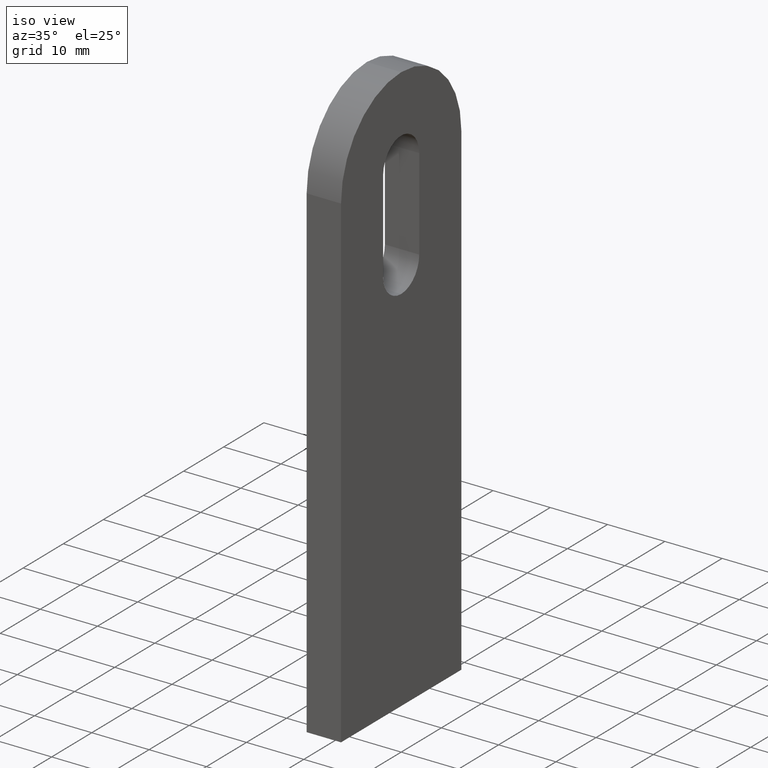
[diagram: clean part render]
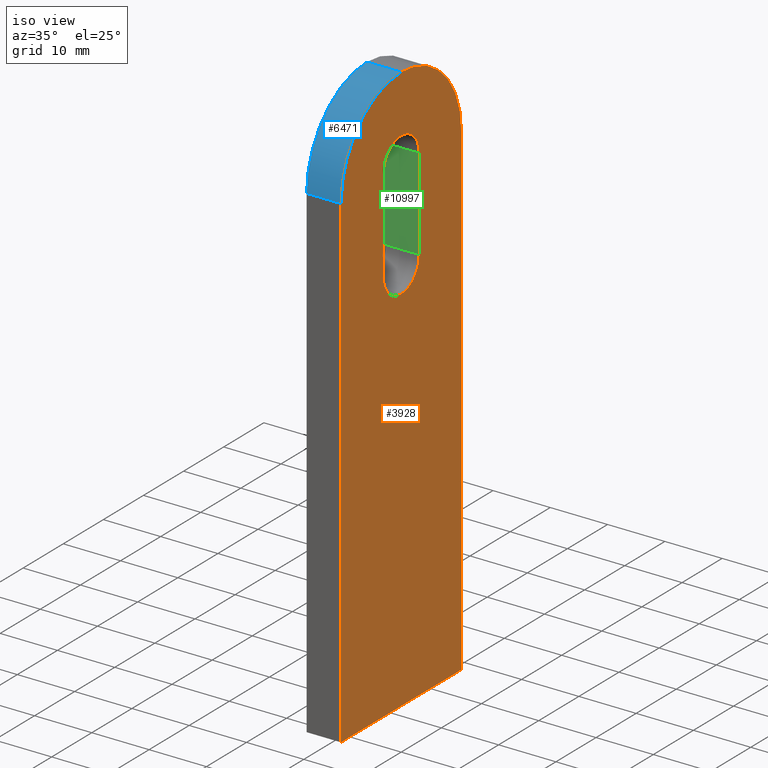
[diagram: same view with three faces highlighted in distinct colors, each labeled with its STEP entity id]
A machine part, iso view with three faces highlighted in distinct colors.
Their STEP definitions:

[orange] entity #3928 — the highlighted planar face has unit normal (-1, -0, 0).
#116 = VECTOR ( 'NONE', #5623, 1000.000000000000000 ) ;
#332 = VERTEX_POINT ( 'NONE', #9308 ) ;
#502 = LINE ( 'NONE', #7531, #4234 ) ;
#598 = AXIS2_PLACEMENT_3D ( 'NONE', #4738, #4783, #873 ) ;
#697 = CARTESIAN_POINT ( 'NONE',  ( 3.000000000000000000, -4.500000000000000900, 85.49999999999998600 ) ) ;
#776 = EDGE_CURVE ( 'NONE', #332, #5446, #502, .T. ) ;
#824 = DIRECTION ( 'NONE',  ( -1.000000000000000000, -0.0000000000000000000, 0.0000000000000000000 ) ) ;
#873 = DIRECTION ( 'NONE',  ( 0.0000000000000000000, 0.0000000000000000000, 1.000000000000000000 ) ) ;
#932 = ORIENTED_EDGE ( 'NONE', *, *, #9078, .F. ) ;
#1104 = CARTESIAN_POINT ( 'NONE',  ( 3.000000000000000000, 15.00000000000000000, -3.061616997868383000E-015 ) ) ;
#1549 = FACE_OUTER_BOUND ( 'NONE', #9142, .T. ) ;
#1678 = CIRCLE ( 'NONE', #8870, 4.500000000000003600 ) ;
#1896 = EDGE_CURVE ( 'NONE', #5444, #4095, #10503, .T. ) ;
#1994 = DIRECTION ( 'NONE',  ( 0.0000000000000000000, 0.0000000000000000000, -1.000000000000000000 ) ) ;
#2065 = ORIENTED_EDGE ( 'NONE', *, *, #4713, .F. ) ;
#2229 = VERTEX_POINT ( 'NONE', #11192 ) ;
#2475 = ORIENTED_EDGE ( 'NONE', *, *, #2848, .F. ) ;
#2553 = DIRECTION ( 'NONE',  ( 0.0000000000000000000, 0.0000000000000000000, -1.000000000000000000 ) ) ;
#2564 = CIRCLE ( 'NONE', #11419, 4.500000000000003600 ) ;
#2671 = CARTESIAN_POINT ( 'NONE',  ( 3.000000000000000000, 4.500000000000000900, 85.49999999999998600 ) ) ;
#2735 = CIRCLE ( 'NONE', #5178, 15.00000000000000000 ) ;
#2755 = ORIENTED_EDGE ( 'NONE', *, *, #1896, .F. ) ;
#2815 = ORIENTED_EDGE ( 'NONE', *, *, #5278, .F. ) ;
#2848 = EDGE_CURVE ( 'NONE', #11845, #3695, #3883, .T. ) ;
#3024 = DIRECTION ( 'NONE',  ( 1.000000000000000000, 0.0000000000000000000, 0.0000000000000000000 ) ) ;
#3272 = CARTESIAN_POINT ( 'NONE',  ( 3.000000000000000000, -4.500000000000000900, 85.49999999999998600 ) ) ;
#3397 = ORIENTED_EDGE ( 'NONE', *, *, #9939, .F. ) ;
#3546 = FACE_BOUND ( 'NONE', #4427, .T. ) ;
#3695 = VERTEX_POINT ( 'NONE', #10244 ) ;
#3702 = DIRECTION ( 'NONE',  ( 0.0000000000000000000, 0.0000000000000000000, 1.000000000000000000 ) ) ;
#3808 = VERTEX_POINT ( 'NONE', #6683 ) ;
#3883 = LINE ( 'NONE', #3272, #7280 ) ;
#3928 = ADVANCED_FACE ( 'NONE', ( #3546, #1549 ), #6806, .F. ) ;
#4095 = VERTEX_POINT ( 'NONE', #1104 ) ;
#4234 = VECTOR ( 'NONE', #8526, 1000.000000000000000 ) ;
#4427 = EDGE_LOOP ( 'NONE', ( #2475, #10316, #7263, #12418, #2065 ) ) ;
#4713 = EDGE_CURVE ( 'NONE', #3695, #2229, #1678, .T. ) ;
#4722 = CARTESIAN_POINT ( 'NONE',  ( 3.000000000000000000, 15.00000000000000200, 84.99999999999998600 ) ) ;
#4738 = CARTESIAN_POINT ( 'NONE',  ( 3.000000000000000000, 0.0000000000000000000, 84.99999999999998600 ) ) ;
#4749 = VERTEX_POINT ( 'NONE', #5975 ) ;
#4783 = DIRECTION ( 'NONE',  ( -1.000000000000000000, -0.0000000000000000000, 0.0000000000000000000 ) ) ;
#4818 = DIRECTION ( 'NONE',  ( 0.0000000000000000000, 0.0000000000000000000, 1.000000000000000000 ) ) ;
#4899 = LINE ( 'NONE', #9637, #11628 ) ;
#5178 = AXIS2_PLACEMENT_3D ( 'NONE', #9588, #6723, #3702 ) ;
#5267 = DIRECTION ( 'NONE',  ( 0.0000000000000000000, -2.040851148208008500E-017, -1.000000000000000000 ) ) ;
#5278 = EDGE_CURVE ( 'NONE', #3808, #4749, #2735, .T. ) ;
#5327 = CARTESIAN_POINT ( 'NONE',  ( 3.000000000000000000, -15.00000000000000000, -3.061616997868383000E-015 ) ) ;
#5444 = VERTEX_POINT ( 'NONE', #4722 ) ;
#5446 = VERTEX_POINT ( 'NONE', #2671 ) ;
#5623 = DIRECTION ( 'NONE',  ( 0.0000000000000000000, -2.040851148208008500E-017, 1.000000000000000000 ) ) ;
#5971 = CARTESIAN_POINT ( 'NONE',  ( 3.000000000000000000, 7.966394000823676000E-016, 69.50000000000000000 ) ) ;
#5975 = CARTESIAN_POINT ( 'NONE',  ( 3.000000000000000000, 0.0000000000000000000, 99.99999999999998600 ) ) ;
#5997 = LINE ( 'NONE', #5327, #116 ) ;
#6383 = DIRECTION ( 'NONE',  ( 1.000000000000000000, 0.0000000000000000000, 0.0000000000000000000 ) ) ;
#6683 = CARTESIAN_POINT ( 'NONE',  ( 3.000000000000000000, -15.00000000000000200, 84.99999999999998600 ) ) ;
#6723 = DIRECTION ( 'NONE',  ( -1.000000000000000000, -0.0000000000000000000, 0.0000000000000000000 ) ) ;
#6806 = PLANE ( 'NONE',  #598 ) ;
#6882 = CARTESIAN_POINT ( 'NONE',  ( 3.000000000000000000, 0.0000000000000000000, 84.99999999999998600 ) ) ;
#6913 = CARTESIAN_POINT ( 'NONE',  ( 3.000000000000000000, -15.00000000000000000, -3.061616997868383000E-015 ) ) ;
#6956 = DIRECTION ( 'NONE',  ( 0.0000000000000000000, -1.000000000000000000, 0.0000000000000000000 ) ) ;
#7169 = EDGE_CURVE ( 'NONE', #4095, #7181, #4899, .T. ) ;
#7181 = VERTEX_POINT ( 'NONE', #6913 ) ;
#7263 = ORIENTED_EDGE ( 'NONE', *, *, #776, .F. ) ;
#7280 = VECTOR ( 'NONE', #10157, 1000.000000000000000 ) ;
#7531 = CARTESIAN_POINT ( 'NONE',  ( 3.000000000000000000, 4.500000000000000900, 85.49999999999998600 ) ) ;
#7582 = EDGE_CURVE ( 'NONE', #2229, #332, #2564, .T. ) ;
#7986 = DIRECTION ( 'NONE',  ( 1.000000000000000000, 0.0000000000000000000, 0.0000000000000000000 ) ) ;
#8325 = AXIS2_PLACEMENT_3D ( 'NONE', #12243, #6383, #2553 ) ;
#8526 = DIRECTION ( 'NONE',  ( -0.0000000000000000000, -1.626303258728257900E-016, 1.000000000000000000 ) ) ;
#8660 = VECTOR ( 'NONE', #5267, 1000.000000000000000 ) ;
#8870 = AXIS2_PLACEMENT_3D ( 'NONE', #9780, #3024, #9920 ) ;
#9033 = CARTESIAN_POINT ( 'NONE',  ( 3.000000000000000000, 15.00000000000000200, 84.99999999999998600 ) ) ;
#9078 = EDGE_CURVE ( 'NONE', #4749, #5444, #11829, .T. ) ;
#9142 = EDGE_LOOP ( 'NONE', ( #2815, #3397, #12405, #2755, #932 ) ) ;
#9308 = CARTESIAN_POINT ( 'NONE',  ( 3.000000000000000000, 4.500000000000003600, 69.50000000000000000 ) ) ;
#9481 = EDGE_CURVE ( 'NONE', #5446, #11845, #10908, .T. ) ;
#9588 = CARTESIAN_POINT ( 'NONE',  ( 3.000000000000000000, 0.0000000000000000000, 84.99999999999998600 ) ) ;
#9637 = CARTESIAN_POINT ( 'NONE',  ( 3.000000000000000000, 15.00000000000000000, -3.061616997868383000E-015 ) ) ;
#9780 = CARTESIAN_POINT ( 'NONE',  ( 3.000000000000000000, 7.966394000823676000E-016, 69.50000000000000000 ) ) ;
#9920 = DIRECTION ( 'NONE',  ( 0.0000000000000000000, 0.0000000000000000000, -1.000000000000000000 ) ) ;
#9939 = EDGE_CURVE ( 'NONE', #7181, #3808, #5997, .T. ) ;
#10157 = DIRECTION ( 'NONE',  ( 0.0000000000000000000, 1.626303258728257900E-016, -1.000000000000000000 ) ) ;
#10244 = CARTESIAN_POINT ( 'NONE',  ( 3.000000000000000000, -4.500000000000000000, 69.50000000000000000 ) ) ;
#10281 = AXIS2_PLACEMENT_3D ( 'NONE', #6882, #824, #4818 ) ;
#10316 = ORIENTED_EDGE ( 'NONE', *, *, #9481, .F. ) ;
#10503 = LINE ( 'NONE', #9033, #8660 ) ;
#10908 = CIRCLE ( 'NONE', #8325, 4.500000000000003600 ) ;
#11192 = CARTESIAN_POINT ( 'NONE',  ( 3.000000000000000000, 7.966394000823676000E-016, 65.00000000000000000 ) ) ;
#11419 = AXIS2_PLACEMENT_3D ( 'NONE', #5971, #7986, #1994 ) ;
#11628 = VECTOR ( 'NONE', #6956, 1000.000000000000000 ) ;
#11829 = CIRCLE ( 'NONE', #10281, 15.00000000000000000 ) ;
#11845 = VERTEX_POINT ( 'NONE', #697 ) ;
#12243 = CARTESIAN_POINT ( 'NONE',  ( 3.000000000000000000, -1.776356839400250900E-015, 85.49999999999998600 ) ) ;
#12405 = ORIENTED_EDGE ( 'NONE', *, *, #7169, .F. ) ;
#12418 = ORIENTED_EDGE ( 'NONE', *, *, #7582, .F. ) ;

[blue] entity #6471 — the highlighted cylindrical surface (partial cylindrical patch) has radius 15 mm, axis along (-1, -0, -0).
#236 = EDGE_LOOP ( 'NONE', ( #4182, #2956, #10595, #11248 ) ) ;
#318 = VECTOR ( 'NONE', #1847, 1000.000000000000000 ) ;
#815 = VERTEX_POINT ( 'NONE', #9025 ) ;
#1038 = DIRECTION ( 'NONE',  ( 0.0000000000000000000, 0.0000000000000000000, 1.000000000000000000 ) ) ;
#1847 = DIRECTION ( 'NONE',  ( -1.000000000000000000, -0.0000000000000000000, -0.0000000000000000000 ) ) ;
#1938 = CARTESIAN_POINT ( 'NONE',  ( -3.000000000000000000, 0.0000000000000000000, 84.99999999999998600 ) ) ;
#2735 = CIRCLE ( 'NONE', #5178, 15.00000000000000000 ) ;
#2956 = ORIENTED_EDGE ( 'NONE', *, *, #3459, .T. ) ;
#3239 = DIRECTION ( 'NONE',  ( 0.0000000000000000000, 0.0000000000000000000, 1.000000000000000000 ) ) ;
#3459 = EDGE_CURVE ( 'NONE', #4749, #5881, #12627, .T. ) ;
#3702 = DIRECTION ( 'NONE',  ( 0.0000000000000000000, 0.0000000000000000000, 1.000000000000000000 ) ) ;
#3808 = VERTEX_POINT ( 'NONE', #6683 ) ;
#4163 = CARTESIAN_POINT ( 'NONE',  ( 3.000000000000000000, -15.00000000000000200, 84.99999999999998600 ) ) ;
#4182 = ORIENTED_EDGE ( 'NONE', *, *, #5278, .T. ) ;
#4532 = CIRCLE ( 'NONE', #11653, 15.00000000000000000 ) ;
#4749 = VERTEX_POINT ( 'NONE', #5975 ) ;
#4846 = DIRECTION ( 'NONE',  ( -1.000000000000000000, -0.0000000000000000000, 0.0000000000000000000 ) ) ;
#4881 = CARTESIAN_POINT ( 'NONE',  ( 3.000000000000000000, 0.0000000000000000000, 99.99999999999998600 ) ) ;
#5178 = AXIS2_PLACEMENT_3D ( 'NONE', #9588, #6723, #3702 ) ;
#5278 = EDGE_CURVE ( 'NONE', #3808, #4749, #2735, .T. ) ;
#5788 = EDGE_CURVE ( 'NONE', #3808, #815, #6481, .T. ) ;
#5881 = VERTEX_POINT ( 'NONE', #9190 ) ;
#5975 = CARTESIAN_POINT ( 'NONE',  ( 3.000000000000000000, 0.0000000000000000000, 99.99999999999998600 ) ) ;
#6471 = ADVANCED_FACE ( 'NONE', ( #8135 ), #7060, .T. ) ;
#6481 = LINE ( 'NONE', #4163, #7681 ) ;
#6683 = CARTESIAN_POINT ( 'NONE',  ( 3.000000000000000000, -15.00000000000000200, 84.99999999999998600 ) ) ;
#6723 = DIRECTION ( 'NONE',  ( -1.000000000000000000, -0.0000000000000000000, 0.0000000000000000000 ) ) ;
#7060 = CYLINDRICAL_SURFACE ( 'NONE', #8404, 15.00000000000000000 ) ;
#7681 = VECTOR ( 'NONE', #11953, 1000.000000000000000 ) ;
#7857 = CARTESIAN_POINT ( 'NONE',  ( 3.000000000000000000, 0.0000000000000000000, 84.99999999999998600 ) ) ;
#8032 = DIRECTION ( 'NONE',  ( -1.000000000000000000, -0.0000000000000000000, -0.0000000000000000000 ) ) ;
#8135 = FACE_OUTER_BOUND ( 'NONE', #236, .T. ) ;
#8284 = EDGE_CURVE ( 'NONE', #815, #5881, #4532, .T. ) ;
#8404 = AXIS2_PLACEMENT_3D ( 'NONE', #7857, #8032, #3239 ) ;
#9025 = CARTESIAN_POINT ( 'NONE',  ( -3.000000000000000000, -15.00000000000000200, 84.99999999999998600 ) ) ;
#9190 = CARTESIAN_POINT ( 'NONE',  ( -3.000000000000000000, 0.0000000000000000000, 99.99999999999998600 ) ) ;
#9588 = CARTESIAN_POINT ( 'NONE',  ( 3.000000000000000000, 0.0000000000000000000, 84.99999999999998600 ) ) ;
#10595 = ORIENTED_EDGE ( 'NONE', *, *, #8284, .F. ) ;
#11248 = ORIENTED_EDGE ( 'NONE', *, *, #5788, .F. ) ;
#11653 = AXIS2_PLACEMENT_3D ( 'NONE', #1938, #4846, #1038 ) ;
#11953 = DIRECTION ( 'NONE',  ( -1.000000000000000000, -0.0000000000000000000, -0.0000000000000000000 ) ) ;
#12627 = LINE ( 'NONE', #4881, #318 ) ;

[green] entity #10997 — the highlighted planar face has unit normal (0, 1, 0).
#20 = CARTESIAN_POINT ( 'NONE',  ( -3.000000000000000000, 4.500000000000003600, 69.50000000000000000 ) ) ;
#332 = VERTEX_POINT ( 'NONE', #9308 ) ;
#502 = LINE ( 'NONE', #7531, #4234 ) ;
#776 = EDGE_CURVE ( 'NONE', #332, #5446, #502, .T. ) ;
#784 = DIRECTION ( 'NONE',  ( 0.0000000000000000000, -1.626303258728257900E-016, 1.000000000000000000 ) ) ;
#957 = DIRECTION ( 'NONE',  ( 1.000000000000000000, -0.0000000000000000000, -0.0000000000000000000 ) ) ;
#1698 = ORIENTED_EDGE ( 'NONE', *, *, #10556, .T. ) ;
#1825 = CARTESIAN_POINT ( 'NONE',  ( -3.000000000000000000, 4.500000000000000900, 85.49999999999998600 ) ) ;
#1864 = CARTESIAN_POINT ( 'NONE',  ( -3.000000000000000000, 4.500000000000000900, 85.49999999999998600 ) ) ;
#2310 = VECTOR ( 'NONE', #10728, 1000.000000000000000 ) ;
#2413 = LINE ( 'NONE', #5884, #3959 ) ;
#2468 = AXIS2_PLACEMENT_3D ( 'NONE', #1825, #10567, #784 ) ;
#2671 = CARTESIAN_POINT ( 'NONE',  ( 3.000000000000000000, 4.500000000000000900, 85.49999999999998600 ) ) ;
#2684 = PLANE ( 'NONE',  #2468 ) ;
#3676 = EDGE_LOOP ( 'NONE', ( #6599, #9770, #4990, #1698 ) ) ;
#3959 = VECTOR ( 'NONE', #957, 1000.000000000000000 ) ;
#4165 = LINE ( 'NONE', #1864, #2310 ) ;
#4234 = VECTOR ( 'NONE', #8526, 1000.000000000000000 ) ;
#4436 = VERTEX_POINT ( 'NONE', #9897 ) ;
#4591 = DIRECTION ( 'NONE',  ( 1.000000000000000000, -0.0000000000000000000, -0.0000000000000000000 ) ) ;
#4990 = ORIENTED_EDGE ( 'NONE', *, *, #9223, .F. ) ;
#5446 = VERTEX_POINT ( 'NONE', #2671 ) ;
#5586 = CARTESIAN_POINT ( 'NONE',  ( -3.000000000000000000, 4.500000000000003600, 69.50000000000000000 ) ) ;
#5884 = CARTESIAN_POINT ( 'NONE',  ( -3.000000000000000000, 4.500000000000000900, 85.49999999999998600 ) ) ;
#6540 = VERTEX_POINT ( 'NONE', #20 ) ;
#6599 = ORIENTED_EDGE ( 'NONE', *, *, #776, .T. ) ;
#7388 = LINE ( 'NONE', #5586, #11493 ) ;
#7522 = EDGE_CURVE ( 'NONE', #4436, #5446, #2413, .T. ) ;
#7531 = CARTESIAN_POINT ( 'NONE',  ( 3.000000000000000000, 4.500000000000000900, 85.49999999999998600 ) ) ;
#8526 = DIRECTION ( 'NONE',  ( -0.0000000000000000000, -1.626303258728257900E-016, 1.000000000000000000 ) ) ;
#9223 = EDGE_CURVE ( 'NONE', #6540, #4436, #4165, .T. ) ;
#9308 = CARTESIAN_POINT ( 'NONE',  ( 3.000000000000000000, 4.500000000000003600, 69.50000000000000000 ) ) ;
#9376 = FACE_OUTER_BOUND ( 'NONE', #3676, .T. ) ;
#9770 = ORIENTED_EDGE ( 'NONE', *, *, #7522, .F. ) ;
#9897 = CARTESIAN_POINT ( 'NONE',  ( -3.000000000000000000, 4.500000000000000900, 85.49999999999998600 ) ) ;
#10556 = EDGE_CURVE ( 'NONE', #6540, #332, #7388, .T. ) ;
#10567 = DIRECTION ( 'NONE',  ( 0.0000000000000000000, 1.000000000000000000, 1.626303258728257900E-016 ) ) ;
#10728 = DIRECTION ( 'NONE',  ( -0.0000000000000000000, -1.626303258728257900E-016, 1.000000000000000000 ) ) ;
#10997 = ADVANCED_FACE ( 'NONE', ( #9376 ), #2684, .F. ) ;
#11493 = VECTOR ( 'NONE', #4591, 1000.000000000000000 ) ;